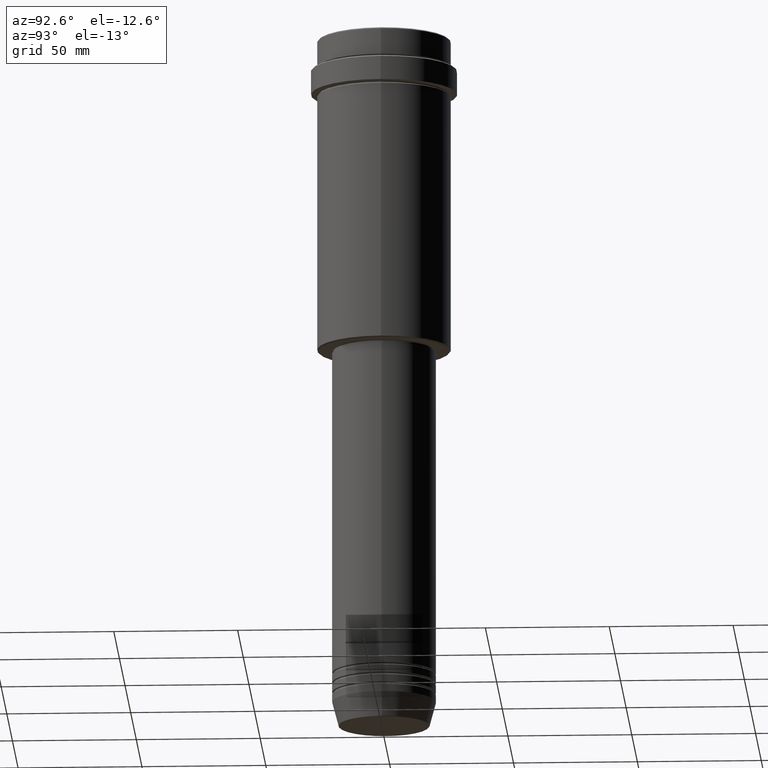
[diagram: clean part render]
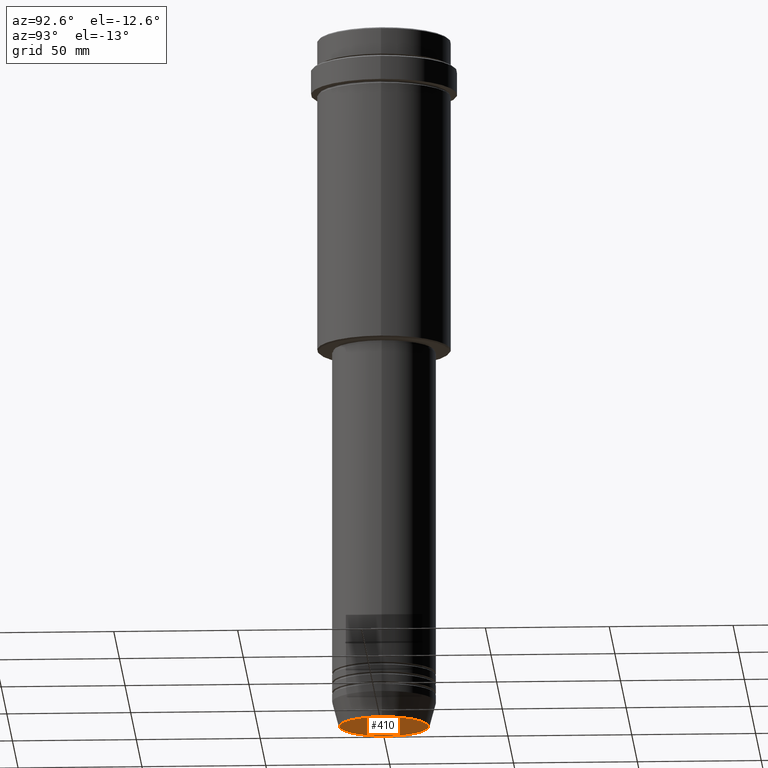
[diagram: same view with one face highlighted and labeled with its STEP entity id]
A machine part, auxiliary view. The second image highlights one B-rep face of the part: STEP entity #410.
In plain terms, the highlighted planar face has unit normal (0, -0, 1).
Its self-contained STEP definition (entity closure, byte-faithful):
#81 = CARTESIAN_POINT ( 'NONE',  ( 17.93684458169929030, 0.000000000000000000, -283.0000000000000568 ) ) ;
#89 = AXIS2_PLACEMENT_3D ( 'NONE', #1188, #938, #1394 ) ;
#94 = VERTEX_POINT ( 'NONE', #81 ) ;
#254 = DIRECTION ( 'NONE',  ( 1.000000000000000000, 0.000000000000000000, 0.000000000000000000 ) ) ;
#271 = CARTESIAN_POINT ( 'NONE',  ( 0.000000000000000000, 0.000000000000000000, -283.0000000000000568 ) ) ;
#410 = ADVANCED_FACE ( 'NONE', ( #1349 ), #591, .F. ) ;
#478 = ORIENTED_EDGE ( 'NONE', *, *, #551, .T. ) ;
#541 = AXIS2_PLACEMENT_3D ( 'NONE', #912, #934, #714 ) ;
#551 = EDGE_CURVE ( 'NONE', #94, #935, #723, .T. ) ;
#591 = PLANE ( 'NONE',  #815 ) ;
#598 = EDGE_LOOP ( 'NONE', ( #478, #1348 ) ) ;
#714 = DIRECTION ( 'NONE',  ( 1.000000000000000000, 0.000000000000000000, 0.000000000000000000 ) ) ;
#723 = CIRCLE ( 'NONE', #89, 17.93684458169929030 ) ;
#815 = AXIS2_PLACEMENT_3D ( 'NONE', #271, #1138, #254 ) ;
#912 = CARTESIAN_POINT ( 'NONE',  ( 0.000000000000000000, 0.000000000000000000, -283.0000000000000568 ) ) ;
#934 = DIRECTION ( 'NONE',  ( 0.000000000000000000, 0.000000000000000000, -1.000000000000000000 ) ) ;
#935 = VERTEX_POINT ( 'NONE', #1332 ) ;
#938 = DIRECTION ( 'NONE',  ( 0.000000000000000000, 0.000000000000000000, -1.000000000000000000 ) ) ;
#1138 = DIRECTION ( 'NONE',  ( 0.000000000000000000, -0.000000000000000000, 1.000000000000000000 ) ) ;
#1157 = CIRCLE ( 'NONE', #541, 17.93684458169929030 ) ;
#1188 = CARTESIAN_POINT ( 'NONE',  ( 0.000000000000000000, 0.000000000000000000, -283.0000000000000568 ) ) ;
#1332 = CARTESIAN_POINT ( 'NONE',  ( -17.93684458169929030, 2.226202879662625134E-15, -283.0000000000000568 ) ) ;
#1348 = ORIENTED_EDGE ( 'NONE', *, *, #1379, .T. ) ;
#1349 = FACE_OUTER_BOUND ( 'NONE', #598, .T. ) ;
#1379 = EDGE_CURVE ( 'NONE', #935, #94, #1157, .T. ) ;
#1394 = DIRECTION ( 'NONE',  ( 1.000000000000000000, 0.000000000000000000, 0.000000000000000000 ) ) ;